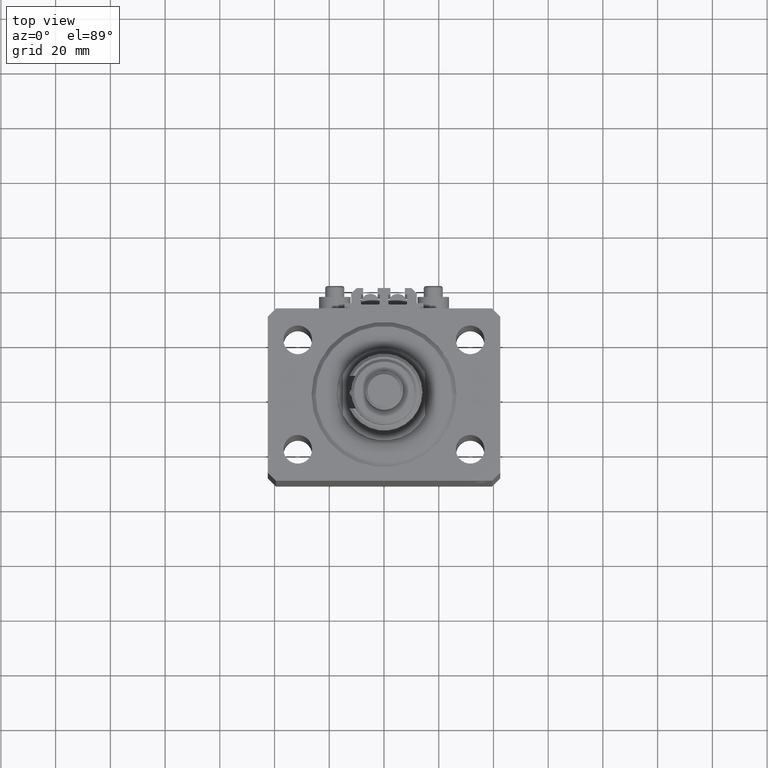
[diagram: clean part render]
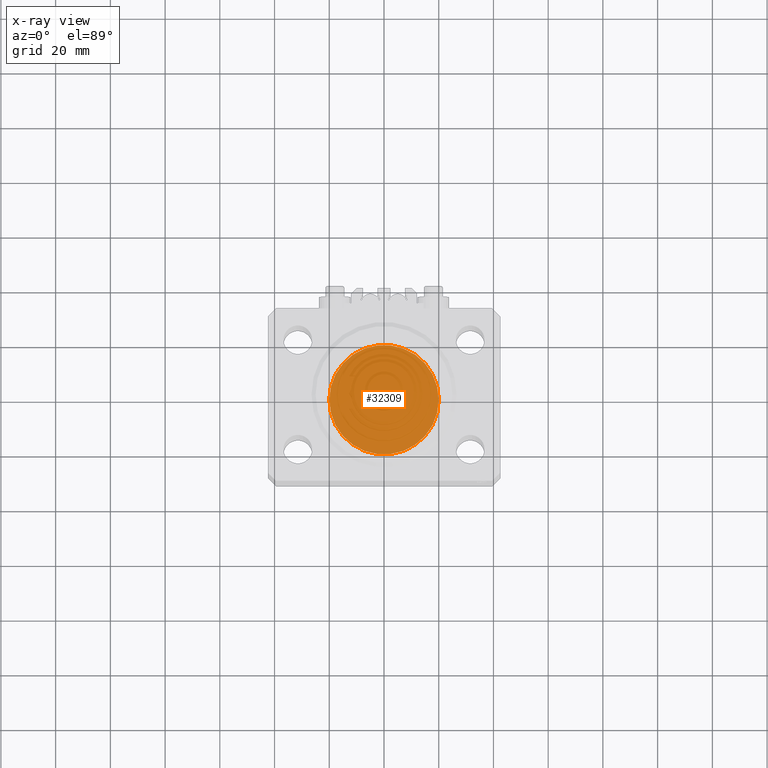
[diagram: x-ray — body ghosted, one internal face saturated and labeled with its STEP entity id]
A machine part, top view, then the same camera in x-ray: the body is ghosted and one INTERNAL B-rep face — a face not visible from any outside direction — is saturated and labeled: STEP entity #32309.
In plain terms, the highlighted planar face has unit normal (0, 0, 1).
Its self-contained STEP definition (entity closure, byte-faithful):
#8871 = DIRECTION ( 'NONE',  ( 0.000000000000000000, 0.000000000000000000, 1.000000000000000000 ) ) ;
#11176 = DIRECTION ( 'NONE',  ( 1.000000000000000000, 0.000000000000000000, 0.000000000000000000 ) ) ;
#13790 = CARTESIAN_POINT ( 'NONE',  ( 0.000000000000000000, 0.000000000000000000, 0.000000000000000000 ) ) ;
#19220 = ORIENTED_EDGE ( 'NONE', *, *, #47639, .F. ) ;
#19521 = CARTESIAN_POINT ( 'NONE',  ( -20.00000000000000000, 0.000000000000000000, 0.000000000000000000 ) ) ;
#20885 = AXIS2_PLACEMENT_3D ( 'NONE', #26890, #39259, #11176 ) ;
#26146 = DIRECTION ( 'NONE',  ( 0.000000000000000000, 0.000000000000000000, 1.000000000000000000 ) ) ;
#26890 = CARTESIAN_POINT ( 'NONE',  ( 0.000000000000000000, 0.000000000000000000, 0.000000000000000000 ) ) ;
#28438 = PLANE ( 'NONE',  #42717 ) ;
#32309 = ADVANCED_FACE ( 'NONE', ( #44175 ), #28438, .F. ) ;
#32318 = AXIS2_PLACEMENT_3D ( 'NONE', #13790, #26146, #45237 ) ;
#33080 = DIRECTION ( 'NONE',  ( 1.000000000000000000, 0.000000000000000000, -0.000000000000000000 ) ) ;
#33737 = CARTESIAN_POINT ( 'NONE',  ( 20.00000000000000000, 2.449293598294706513E-15, 0.000000000000000000 ) ) ;
#36235 = ORIENTED_EDGE ( 'NONE', *, *, #45438, .F. ) ;
#38816 = VERTEX_POINT ( 'NONE', #33737 ) ;
#39259 = DIRECTION ( 'NONE',  ( 0.000000000000000000, 0.000000000000000000, 1.000000000000000000 ) ) ;
#41386 = VERTEX_POINT ( 'NONE', #19521 ) ;
#42717 = AXIS2_PLACEMENT_3D ( 'NONE', #43920, #8871, #33080 ) ;
#43051 = CIRCLE ( 'NONE', #32318, 20.00000000000000000 ) ;
#43916 = CIRCLE ( 'NONE', #20885, 20.00000000000000000 ) ;
#43920 = CARTESIAN_POINT ( 'NONE',  ( 0.000000000000000000, 0.000000000000000000, 0.000000000000000000 ) ) ;
#44175 = FACE_OUTER_BOUND ( 'NONE', #47760, .T. ) ;
#45237 = DIRECTION ( 'NONE',  ( 1.000000000000000000, 0.000000000000000000, 0.000000000000000000 ) ) ;
#45438 = EDGE_CURVE ( 'NONE', #41386, #38816, #43051, .T. ) ;
#47639 = EDGE_CURVE ( 'NONE', #38816, #41386, #43916, .T. ) ;
#47760 = EDGE_LOOP ( 'NONE', ( #36235, #19220 ) ) ;